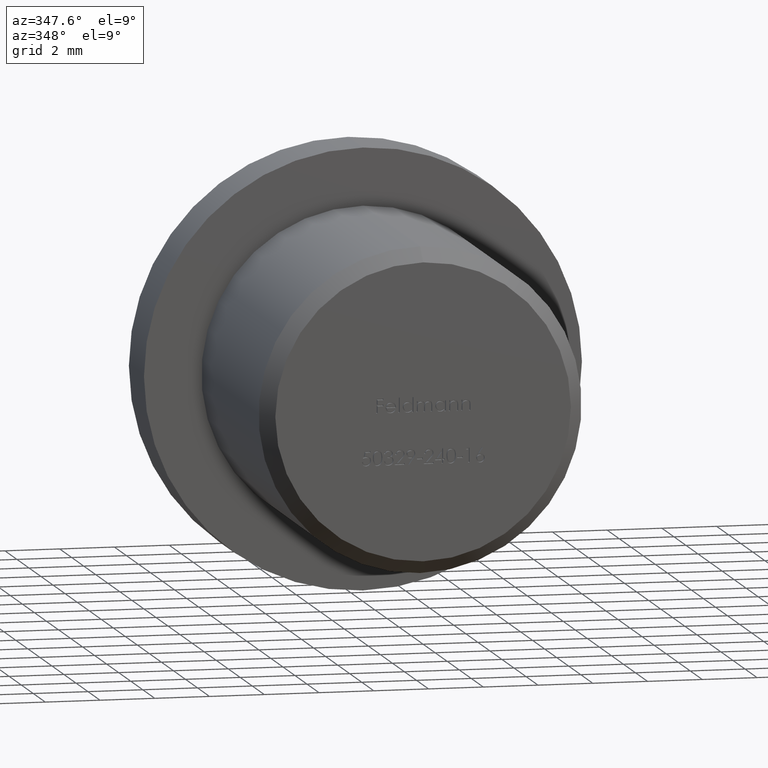
[diagram: clean part render]
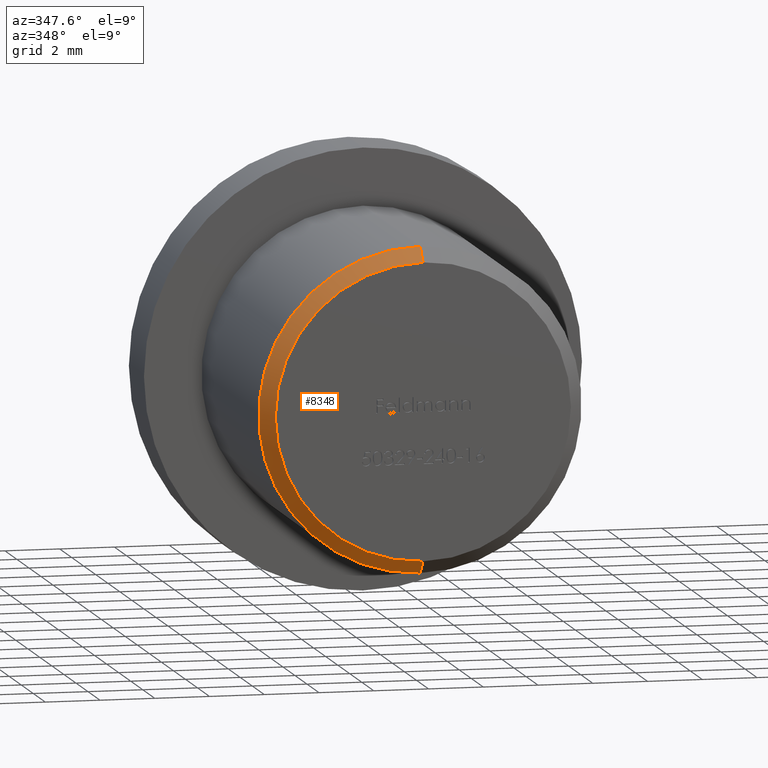
[diagram: same view with one face highlighted and labeled with its STEP entity id]
A machine part, auxiliary view. The second image highlights one B-rep face of the part: STEP entity #8348.
In plain terms, the highlighted conical surface has half-angle 45 deg.
Its self-contained STEP definition (entity closure, byte-faithful):
#83 = EDGE_CURVE ( 'NONE', #1165, #10178, #4865, .T. ) ;
#1165 = VERTEX_POINT ( 'NONE', #13307 ) ;
#1834 = VECTOR ( 'NONE', #13527, 1000.000000000000000 ) ;
#1948 = EDGE_CURVE ( 'NONE', #3514, #9569, #3518, .T. ) ;
#3165 = DIRECTION ( 'NONE',  ( 0.0000000000000000000, 0.0000000000000000000, 1.000000000000000000 ) ) ;
#3514 = VERTEX_POINT ( 'NONE', #12303 ) ;
#3518 = LINE ( 'NONE', #11925, #14267 ) ;
#4050 = CARTESIAN_POINT ( 'NONE',  ( 0.0000000000000000000, 0.5000000000000004400, -5.899999999999999500 ) ) ;
#4443 = ORIENTED_EDGE ( 'NONE', *, *, #11846, .F. ) ;
#4865 = LINE ( 'NONE', #8094, #1834 ) ;
#5380 = ORIENTED_EDGE ( 'NONE', *, *, #83, .T. ) ;
#5479 = DIRECTION ( 'NONE',  ( -0.0000000000000000000, -1.000000000000000000, -0.0000000000000000000 ) ) ;
#5557 = AXIS2_PLACEMENT_3D ( 'NONE', #14309, #7510, #3165 ) ;
#6129 = EDGE_LOOP ( 'NONE', ( #7185, #4443, #5380, #9219 ) ) ;
#7185 = ORIENTED_EDGE ( 'NONE', *, *, #1948, .F. ) ;
#7437 = DIRECTION ( 'NONE',  ( 8.659560562354910700E-017, 0.7071067811865493500, -0.7071067811865456900 ) ) ;
#7510 = DIRECTION ( 'NONE',  ( 0.0000000000000000000, 1.000000000000000000, 0.0000000000000000000 ) ) ;
#7985 = EDGE_CURVE ( 'NONE', #9569, #10178, #13517, .T. ) ;
#8094 = CARTESIAN_POINT ( 'NONE',  ( 0.0000000000000000000, -6.123233995736733200E-018, 5.400000000000002100 ) ) ;
#8348 = ADVANCED_FACE ( 'NONE', ( #8914 ), #10677, .T. ) ;
#8660 = DIRECTION ( 'NONE',  ( 0.0000000000000000000, 0.0000000000000000000, -1.000000000000000000 ) ) ;
#8813 = CARTESIAN_POINT ( 'NONE',  ( 7.225416114969384200E-016, 0.5000000000000004400, 5.899999999999999500 ) ) ;
#8914 = FACE_OUTER_BOUND ( 'NONE', #6129, .T. ) ;
#9219 = ORIENTED_EDGE ( 'NONE', *, *, #7985, .F. ) ;
#9569 = VERTEX_POINT ( 'NONE', #4050 ) ;
#10178 = VERTEX_POINT ( 'NONE', #8813 ) ;
#10353 = AXIS2_PLACEMENT_3D ( 'NONE', #12173, #12227, #8660 ) ;
#10623 = CIRCLE ( 'NONE', #12572, 5.400000000000002100 ) ;
#10677 = CONICAL_SURFACE ( 'NONE', #5557, 5.400000000000002100, 0.7853981633974457300 ) ;
#11134 = DIRECTION ( 'NONE',  ( 0.0000000000000000000, 0.0000000000000000000, -1.000000000000000000 ) ) ;
#11846 = EDGE_CURVE ( 'NONE', #1165, #3514, #10623, .T. ) ;
#11925 = CARTESIAN_POINT ( 'NONE',  ( 6.613092715395709400E-016, -6.123233995736733200E-018, -5.400000000000002100 ) ) ;
#12173 = CARTESIAN_POINT ( 'NONE',  ( 0.0000000000000000000, 0.5000000000000004400, 0.0000000000000000000 ) ) ;
#12227 = DIRECTION ( 'NONE',  ( 0.0000000000000000000, 1.000000000000000000, 0.0000000000000000000 ) ) ;
#12233 = CARTESIAN_POINT ( 'NONE',  ( 0.0000000000000000000, -6.123233995736733200E-018, 0.0000000000000000000 ) ) ;
#12303 = CARTESIAN_POINT ( 'NONE',  ( 6.919254415182546300E-016, -6.123233995736733200E-018, -5.400000000000002100 ) ) ;
#12572 = AXIS2_PLACEMENT_3D ( 'NONE', #12233, #5479, #11134 ) ;
#13307 = CARTESIAN_POINT ( 'NONE',  ( 0.0000000000000000000, -6.123233995736733200E-018, 5.400000000000002100 ) ) ;
#13517 = CIRCLE ( 'NONE', #10353, 5.899999999999999500 ) ;
#13527 = DIRECTION ( 'NONE',  ( 0.0000000000000000000, 0.7071067811865493500, 0.7071067811865456900 ) ) ;
#14267 = VECTOR ( 'NONE', #7437, 1000.000000000000000 ) ;
#14309 = CARTESIAN_POINT ( 'NONE',  ( 0.0000000000000000000, -6.123233995736733200E-018, 0.0000000000000000000 ) ) ;